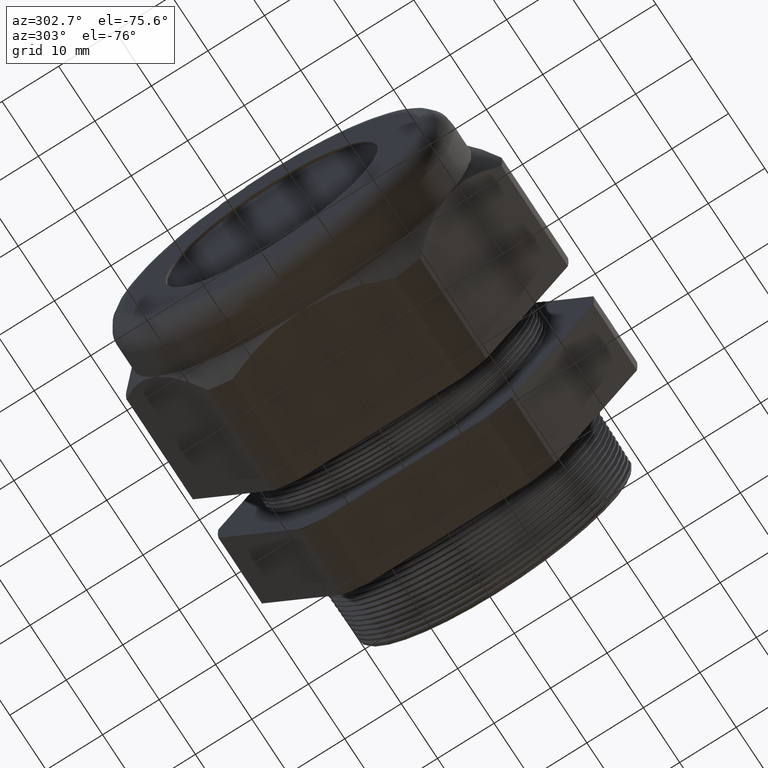
[diagram: clean part render]
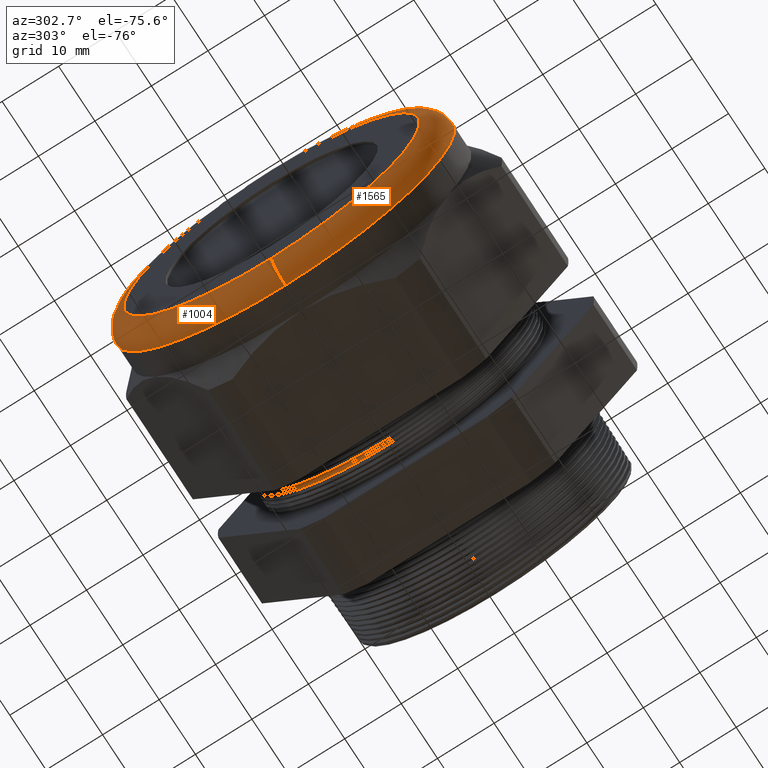
[diagram: same view with one multi-face feature highlighted, each face labeled with its STEP entity id]
A machine part, auxiliary view. The highlighted faces form ONE feature: a constant-radius fillet chain: 2 tangent blend faces with common blend radius 3.81 mm. The faces share edges in the B-rep.
Their STEP definitions:
[1] entity #1004 (Torus):
#930 = EDGE_CURVE ( 'NONE', #931, #932, #3353, .T. ) ;
#931 = VERTEX_POINT ( 'NONE', #3348 ) ;
#932 = VERTEX_POINT ( 'NONE', #3347 ) ;
#933 = ORIENTED_EDGE ( 'NONE', *, *, #934, .T. ) ;
#934 = EDGE_CURVE ( 'NONE', #931, #935, #3346, .T. ) ;
#935 = VERTEX_POINT ( 'NONE', #3341 ) ;
#945 = ORIENTED_EDGE ( 'NONE', *, *, #946, .F. ) ;
#946 = EDGE_CURVE ( 'NONE', #947, #935, #3388, .T. ) ;
#947 = VERTEX_POINT ( 'NONE', #3383 ) ;
#948 = ORIENTED_EDGE ( 'NONE', *, *, #949, .F. ) ;
#949 = EDGE_CURVE ( 'NONE', #932, #947, #3382, .T. ) ;
#1004 = ADVANCED_FACE ( 'NONE', ( #3465 ), #3464, .T. ) ;
#1005 = EDGE_LOOP ( 'NONE', ( #1006, #933, #945, #948 ) ) ;
#1006 = ORIENTED_EDGE ( 'NONE', *, *, #930, .F. ) ;
#3341 = CARTESIAN_POINT ( 'NONE',  ( -2.240000000000000200, 1.353234713057824900E-016, -1.029999999999999600 ) ) ;
#3342 = DIRECTION ( 'NONE',  ( 0.0000000000000000000, -1.224646799147352500E-016, 1.000000000000000000 ) ) ;
#3343 = DIRECTION ( 'NONE',  ( 0.0000000000000000000, 1.000000000000000000, 1.224646799147353200E-016 ) ) ;
#3344 = CARTESIAN_POINT ( 'NONE',  ( -2.090000000000000300, 1.261386203121773200E-016, -1.029999999999999600 ) ) ;
#3345 = AXIS2_PLACEMENT_3D ( 'NONE', #3344, #3343, #3342 ) ;
#3346 = CIRCLE ( 'NONE', #3345, 0.1500000000000000500 ) ;
#3347 = CARTESIAN_POINT ( 'NONE',  ( -2.090000000000000300, 1.445083222993876500E-016, 1.179999999999999700 ) ) ;
#3348 = CARTESIAN_POINT ( 'NONE',  ( -2.090000000000000300, 0.0000000000000000000, -1.179999999999999700 ) ) ;
#3349 = DIRECTION ( 'NONE',  ( 0.0000000000000000000, 0.0000000000000000000, 1.000000000000000000 ) ) ;
#3350 = DIRECTION ( 'NONE',  ( 1.000000000000000000, 0.0000000000000000000, 0.0000000000000000000 ) ) ;
#3351 = CARTESIAN_POINT ( 'NONE',  ( -2.090000000000000300, 0.0000000000000000000, 0.0000000000000000000 ) ) ;
#3352 = AXIS2_PLACEMENT_3D ( 'NONE', #3351, #3350, #3349 ) ;
#3353 = CIRCLE ( 'NONE', #3352, 1.179999999999999700 ) ;
#3378 = DIRECTION ( 'NONE',  ( 0.0000000000000000000, 0.0000000000000000000, -1.000000000000000000 ) ) ;
#3379 = DIRECTION ( 'NONE',  ( 0.0000000000000000000, -1.000000000000000000, 0.0000000000000000000 ) ) ;
#3380 = CARTESIAN_POINT ( 'NONE',  ( -2.090000000000000300, 0.0000000000000000000, 1.029999999999999600 ) ) ;
#3381 = AXIS2_PLACEMENT_3D ( 'NONE', #3380, #3379, #3378 ) ;
#3382 = CIRCLE ( 'NONE', #3381, 0.1500000000000000500 ) ;
#3383 = CARTESIAN_POINT ( 'NONE',  ( -2.240000000000000200, 0.0000000000000000000, 1.029999999999999600 ) ) ;
#3384 = DIRECTION ( 'NONE',  ( 0.0000000000000000000, 0.0000000000000000000, 1.000000000000000000 ) ) ;
#3385 = DIRECTION ( 'NONE',  ( -1.000000000000000000, 0.0000000000000000000, 0.0000000000000000000 ) ) ;
#3386 = CARTESIAN_POINT ( 'NONE',  ( -2.240000000000000200, 0.0000000000000000000, 0.0000000000000000000 ) ) ;
#3387 = AXIS2_PLACEMENT_3D ( 'NONE', #3386, #3385, #3384 ) ;
#3388 = CIRCLE ( 'NONE', #3387, 1.029999999999999600 ) ;
#3461 = DIRECTION ( 'NONE',  ( 0.0000000000000000000, 0.0000000000000000000, 1.000000000000000000 ) ) ;
#3462 = DIRECTION ( 'NONE',  ( -1.000000000000000000, 0.0000000000000000000, 0.0000000000000000000 ) ) ;
#3463 = AXIS2_PLACEMENT_3D ( 'NONE', #3471, #3462, #3461 ) ;
#3464 = TOROIDAL_SURFACE ( 'NONE', #3463, 1.029999999999999600, 0.1499999999999999900 ) ;
#3465 = FACE_OUTER_BOUND ( 'NONE', #1005, .T. ) ;
#3471 = CARTESIAN_POINT ( 'NONE',  ( -2.090000000000000300, 0.0000000000000000000, 0.0000000000000000000 ) ) ;
[2] entity #1565 (Torus):
#931 = VERTEX_POINT ( 'NONE', #3348 ) ;
#932 = VERTEX_POINT ( 'NONE', #3347 ) ;
#934 = EDGE_CURVE ( 'NONE', #931, #935, #3346, .T. ) ;
#935 = VERTEX_POINT ( 'NONE', #3341 ) ;
#947 = VERTEX_POINT ( 'NONE', #3383 ) ;
#949 = EDGE_CURVE ( 'NONE', #932, #947, #3382, .T. ) ;
#1393 = EDGE_CURVE ( 'NONE', #932, #931, #4270, .T. ) ;
#1410 = EDGE_CURVE ( 'NONE', #935, #947, #4296, .T. ) ;
#1545 = ORIENTED_EDGE ( 'NONE', *, *, #1393, .F. ) ;
#1546 = ORIENTED_EDGE ( 'NONE', *, *, #949, .T. ) ;
#1547 = ORIENTED_EDGE ( 'NONE', *, *, #1410, .F. ) ;
#1565 = ADVANCED_FACE ( 'NONE', ( #4543 ), #4542, .T. ) ;
#1566 = EDGE_LOOP ( 'NONE', ( #1567, #1545, #1546, #1547 ) ) ;
#1567 = ORIENTED_EDGE ( 'NONE', *, *, #934, .F. ) ;
#3341 = CARTESIAN_POINT ( 'NONE',  ( -2.240000000000000200, 1.353234713057824900E-016, -1.029999999999999600 ) ) ;
#3342 = DIRECTION ( 'NONE',  ( 0.0000000000000000000, -1.224646799147352500E-016, 1.000000000000000000 ) ) ;
#3343 = DIRECTION ( 'NONE',  ( 0.0000000000000000000, 1.000000000000000000, 1.224646799147353200E-016 ) ) ;
#3344 = CARTESIAN_POINT ( 'NONE',  ( -2.090000000000000300, 1.261386203121773200E-016, -1.029999999999999600 ) ) ;
#3345 = AXIS2_PLACEMENT_3D ( 'NONE', #3344, #3343, #3342 ) ;
#3346 = CIRCLE ( 'NONE', #3345, 0.1500000000000000500 ) ;
#3347 = CARTESIAN_POINT ( 'NONE',  ( -2.090000000000000300, 1.445083222993876500E-016, 1.179999999999999700 ) ) ;
#3348 = CARTESIAN_POINT ( 'NONE',  ( -2.090000000000000300, 0.0000000000000000000, -1.179999999999999700 ) ) ;
#3378 = DIRECTION ( 'NONE',  ( 0.0000000000000000000, 0.0000000000000000000, -1.000000000000000000 ) ) ;
#3379 = DIRECTION ( 'NONE',  ( 0.0000000000000000000, -1.000000000000000000, 0.0000000000000000000 ) ) ;
#3380 = CARTESIAN_POINT ( 'NONE',  ( -2.090000000000000300, 0.0000000000000000000, 1.029999999999999600 ) ) ;
#3381 = AXIS2_PLACEMENT_3D ( 'NONE', #3380, #3379, #3378 ) ;
#3382 = CIRCLE ( 'NONE', #3381, 0.1500000000000000500 ) ;
#3383 = CARTESIAN_POINT ( 'NONE',  ( -2.240000000000000200, 0.0000000000000000000, 1.029999999999999600 ) ) ;
#4267 = DIRECTION ( 'NONE',  ( 0.0000000000000000000, 0.0000000000000000000, 1.000000000000000000 ) ) ;
#4268 = DIRECTION ( 'NONE',  ( 1.000000000000000000, 0.0000000000000000000, 0.0000000000000000000 ) ) ;
#4269 = AXIS2_PLACEMENT_3D ( 'NONE', #4275, #4268, #4267 ) ;
#4270 = CIRCLE ( 'NONE', #4269, 1.179999999999999700 ) ;
#4275 = CARTESIAN_POINT ( 'NONE',  ( -2.090000000000000300, 0.0000000000000000000, 0.0000000000000000000 ) ) ;
#4292 = DIRECTION ( 'NONE',  ( 0.0000000000000000000, 0.0000000000000000000, 1.000000000000000000 ) ) ;
#4293 = DIRECTION ( 'NONE',  ( -1.000000000000000000, 0.0000000000000000000, 0.0000000000000000000 ) ) ;
#4294 = CARTESIAN_POINT ( 'NONE',  ( -2.240000000000000200, 0.0000000000000000000, 0.0000000000000000000 ) ) ;
#4295 = AXIS2_PLACEMENT_3D ( 'NONE', #4294, #4293, #4292 ) ;
#4296 = CIRCLE ( 'NONE', #4295, 1.029999999999999600 ) ;
#4539 = DIRECTION ( 'NONE',  ( 0.0000000000000000000, 0.0000000000000000000, 1.000000000000000000 ) ) ;
#4540 = DIRECTION ( 'NONE',  ( -1.000000000000000000, 0.0000000000000000000, 0.0000000000000000000 ) ) ;
#4541 = AXIS2_PLACEMENT_3D ( 'NONE', #4547, #4540, #4539 ) ;
#4542 = TOROIDAL_SURFACE ( 'NONE', #4541, 1.029999999999999600, 0.1499999999999999900 ) ;
#4543 = FACE_OUTER_BOUND ( 'NONE', #1566, .T. ) ;
#4547 = CARTESIAN_POINT ( 'NONE',  ( -2.090000000000000300, 0.0000000000000000000, 0.0000000000000000000 ) ) ;